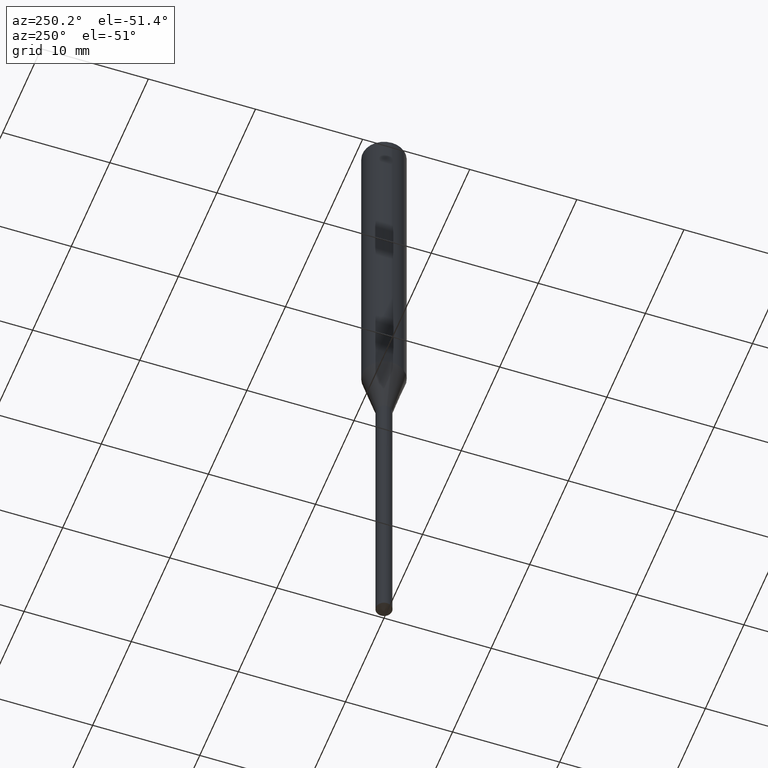
[diagram: clean part render]
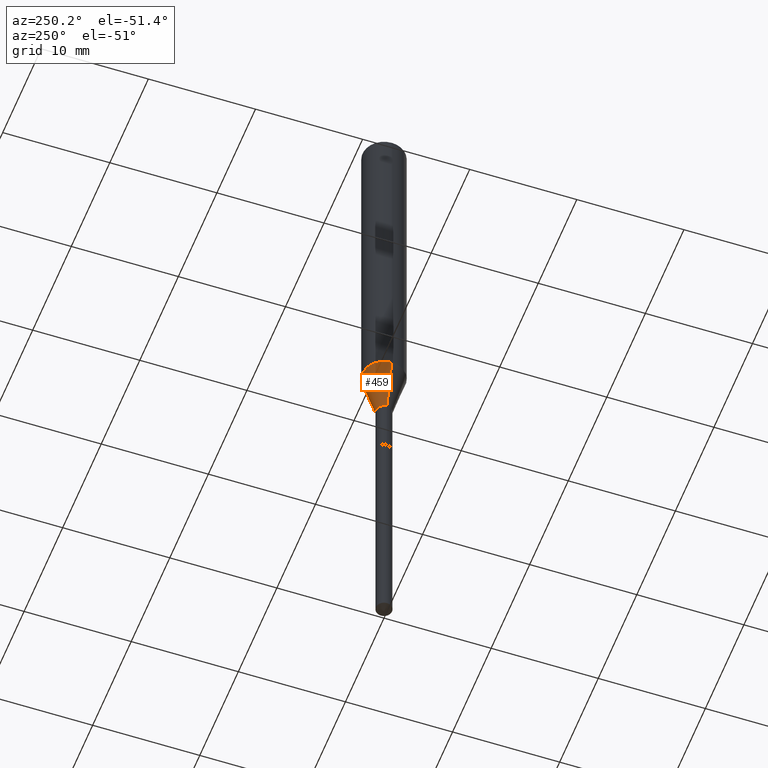
[diagram: same view with one face highlighted and labeled with its STEP entity id]
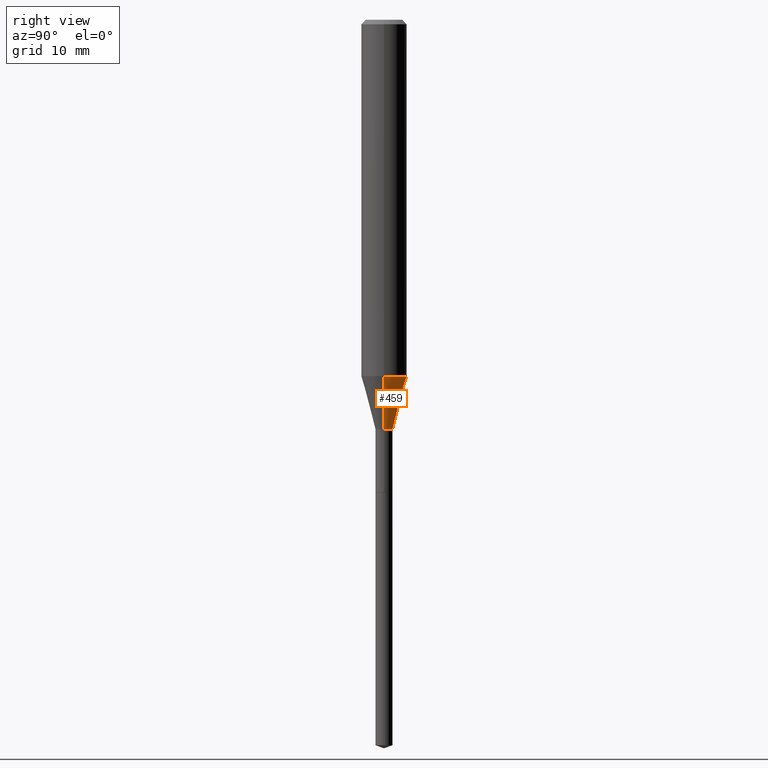
[diagram: same view with one face highlighted and labeled with its STEP entity id]
A machine part, auxiliary view. The second image highlights one B-rep face of the part: STEP entity #459.
A second angle (right view) of the same face is appended — the face is thin or edge-on in the first view.
In plain terms, the highlighted conical surface has half-angle 15 deg.
Its self-contained STEP definition (entity closure, byte-faithful):
#11 = CONICAL_SURFACE ( 'NONE', #201, 0.02954999999999996518, 0.2617993877991499629 ) ;
#25 = LINE ( 'NONE', #290, #131 ) ;
#55 = FACE_OUTER_BOUND ( 'NONE', #247, .T. ) ;
#58 = CARTESIAN_POINT ( 'NONE',  ( 3.463517470200008716E-29, -4.944985020203546646E-15, -1.416299999999999892 ) ) ;
#92 = DIRECTION ( 'NONE',  ( -0.2588190451025212391, 5.211531920934549464E-15, 0.9659258262890679791 ) ) ;
#104 = CARTESIAN_POINT ( 'NONE',  ( 0.07875000000000015321, -4.853798352159471630E-15, -1.232683100267610854 ) ) ;
#116 = ORIENTED_EDGE ( 'NONE', *, *, #368, .F. ) ;
#122 = CIRCLE ( 'NONE', #453, 0.02954999999999996518 ) ;
#131 = VECTOR ( 'NONE', #92, 39.37007874015748854 ) ;
#145 = ORIENTED_EDGE ( 'NONE', *, *, #308, .F. ) ;
#164 = ORIENTED_EDGE ( 'NONE', *, *, #178, .T. ) ;
#176 = CARTESIAN_POINT ( 'NONE',  ( 0.02954999999999996518, -5.151331567329175468E-15, -1.416299999999999892 ) ) ;
#178 = EDGE_CURVE ( 'NONE', #465, #458, #25, .T. ) ;
#201 = AXIS2_PLACEMENT_3D ( 'NONE', #58, #466, #473 ) ;
#228 = VERTEX_POINT ( 'NONE', #287 ) ;
#245 = VECTOR ( 'NONE', #445, 39.37007874015748854 ) ;
#247 = EDGE_LOOP ( 'NONE', ( #276, #164, #116, #145 ) ) ;
#249 = DIRECTION ( 'NONE',  ( 1.000000000000000000, -6.982962677686270655E-15, 0.000000000000000000 ) ) ;
#252 = CARTESIAN_POINT ( 'NONE',  ( -0.02954999999999996518, -5.114019941117860308E-15, -1.416299999999999892 ) ) ;
#275 = CARTESIAN_POINT ( 'NONE',  ( 3.014488069616027069E-29, -4.303890041291677495E-15, -1.232683100267610854 ) ) ;
#276 = ORIENTED_EDGE ( 'NONE', *, *, #330, .T. ) ;
#281 = DIRECTION ( 'NONE',  ( -2.445468806185136597E-29, 3.491481338843145583E-15, 1.000000000000000000 ) ) ;
#287 = CARTESIAN_POINT ( 'NONE',  ( 0.02954999999999996518, -5.151331567329175468E-15, -1.416299999999999892 ) ) ;
#290 = CARTESIAN_POINT ( 'NONE',  ( -0.02954999999999996518, -4.735019641786437289E-15, -1.416299999999999892 ) ) ;
#308 = EDGE_CURVE ( 'NONE', #228, #309, #363, .T. ) ;
#309 = VERTEX_POINT ( 'NONE', #104 ) ;
#316 = DIRECTION ( 'NONE',  ( 1.000000000000000000, -6.982962677686261189E-15, 0.000000000000000000 ) ) ;
#330 = EDGE_CURVE ( 'NONE', #228, #465, #122, .T. ) ;
#348 = AXIS2_PLACEMENT_3D ( 'NONE', #275, #281, #316 ) ;
#360 = DIRECTION ( 'NONE',  ( -2.445468806185136597E-29, 3.491481338843145583E-15, 1.000000000000000000 ) ) ;
#363 = LINE ( 'NONE', #176, #245 ) ;
#368 = EDGE_CURVE ( 'NONE', #309, #458, #432, .T. ) ;
#384 = CARTESIAN_POINT ( 'NONE',  ( -0.07875000000000015321, -3.744337636880597116E-15, -1.232683100267610854 ) ) ;
#392 = CARTESIAN_POINT ( 'NONE',  ( 3.463517470200008716E-29, -4.944985020203546646E-15, -1.416299999999999892 ) ) ;
#432 = CIRCLE ( 'NONE', #348, 0.07875000000000015321 ) ;
#445 = DIRECTION ( 'NONE',  ( 0.2588190451025212391, 1.565188264969622362E-15, 0.9659258262890679791 ) ) ;
#453 = AXIS2_PLACEMENT_3D ( 'NONE', #392, #360, #249 ) ;
#458 = VERTEX_POINT ( 'NONE', #384 ) ;
#459 = ADVANCED_FACE ( 'NONE', ( #55 ), #11, .T. ) ;
#465 = VERTEX_POINT ( 'NONE', #252 ) ;
#466 = DIRECTION ( 'NONE',  ( -2.445468806185136597E-29, 3.491481338843145583E-15, 1.000000000000000000 ) ) ;
#473 = DIRECTION ( 'NONE',  ( 1.000000000000000000, -6.982962677686270655E-15, 0.000000000000000000 ) ) ;